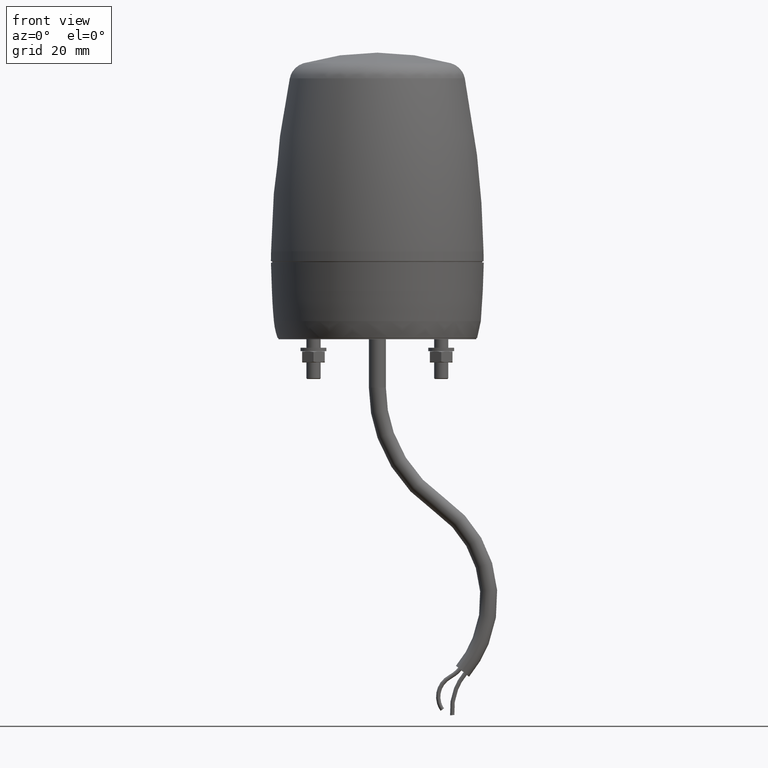
[diagram: clean part render]
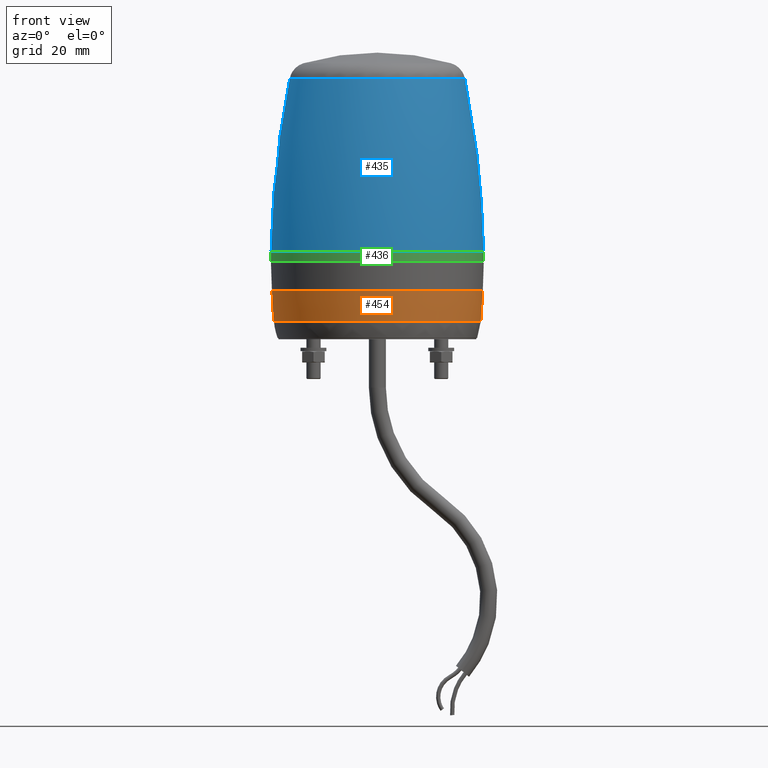
[diagram: same view with three faces highlighted in distinct colors, each labeled with its STEP entity id]
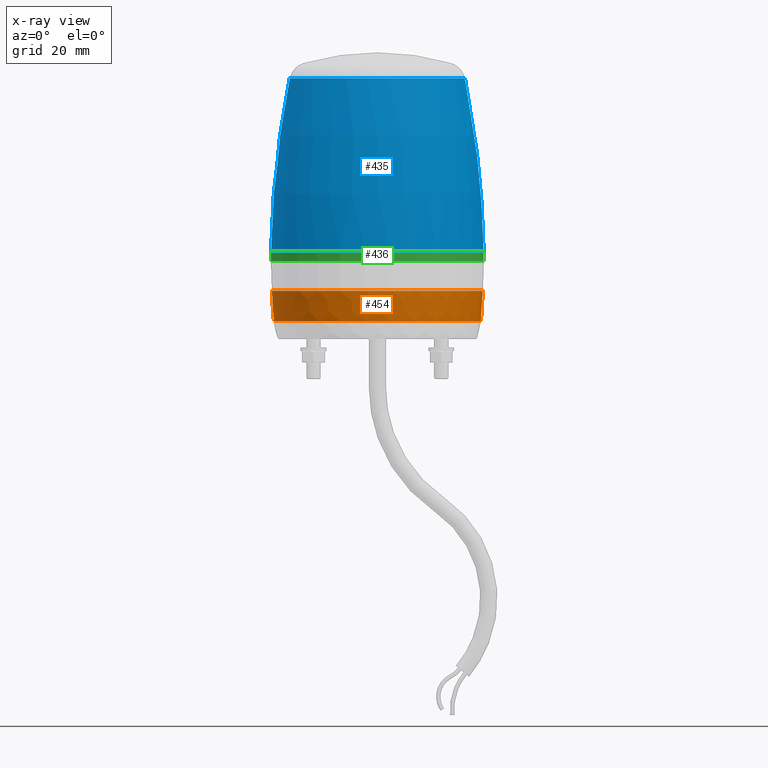
[diagram: x-ray of the same camera — body ghosted, the three highlighted faces saturated]
A machine part, front view with three faces highlighted in distinct colors.
The next image is the same camera in x-ray (body ghosted, the three faces saturated) — at least one of them is partly hidden behind the body in this view.
Their STEP definitions:

[orange] entity #454 — the highlighted face is a freeform B-spline surface patch.
#28=(
BOUNDED_SURFACE()
B_SPLINE_SURFACE(3,3,((#4504,#4505,#4506,#4507,#4508,#4509,#4510),(#4511,
#4512,#4513,#4514,#4515,#4516,#4517),(#4518,#4519,#4520,#4521,#4522,#4523,
#4524),(#4525,#4526,#4527,#4528,#4529,#4530,#4531)),.UNSPECIFIED.,.F.,.T.,
 .F.)
B_SPLINE_SURFACE_WITH_KNOTS((4,4),(1,3,3,3,1),(0.,1.),(-0.5,0.,0.5,1.,1.5),
 .UNSPECIFIED.)
GEOMETRIC_REPRESENTATION_ITEM()
RATIONAL_B_SPLINE_SURFACE(((1.,0.333333333333333,0.333333333333333,1.,0.333333333333333,
0.333333333333333,1.),(0.999710213128854,0.333236737709618,0.333236737709618,
0.999710213128854,0.333236737709618,0.333236737709618,0.999710213128854),
(0.999710213128854,0.333236737709618,0.333236737709618,0.999710213128854,
0.333236737709618,0.333236737709618,0.999710213128854),(1.,0.333333333333333,
0.333333333333333,1.,0.333333333333333,0.333333333333333,1.)))
REPRESENTATION_ITEM('')
SURFACE()
);
#454=ADVANCED_FACE('',(#1071,#1072),#28,.T.);
#1071=FACE_BOUND('',#1264,.T.);
#1072=FACE_BOUND('',#1265,.T.);
#1264=EDGE_LOOP('',(#1696));
#1265=EDGE_LOOP('',(#1697));
#1696=ORIENTED_EDGE('',*,*,#2529,.T.);
#1697=ORIENTED_EDGE('',*,*,#2530,.F.);
#2247=VERTEX_POINT('',#4473);
#2248=VERTEX_POINT('',#4503);
#2529=EDGE_CURVE('',#2247,#2247,#2764,.T.);
#2530=EDGE_CURVE('',#2248,#2248,#2765,.T.);
#2764=CIRCLE('',#2961,36.4645929040285);
#2765=CIRCLE('',#2962,37.1531243347865);
#2961=AXIS2_PLACEMENT_3D('',#4472,#3478,#3479);
#2962=AXIS2_PLACEMENT_3D('',#4502,#3480,#3481);
#3478=DIRECTION('',(0.,0.,1.));
#3479=DIRECTION('',(1.,0.,0.));
#3480=DIRECTION('',(0.,0.,1.));
#3481=DIRECTION('',(1.,0.,0.));
#4472=CARTESIAN_POINT('',(0.0196824600000306,-0.0196824600000021,-0.658859178168889));
#4473=CARTESIAN_POINT('',(36.4842753640286,-0.0196824600000021,-0.658859178168889));
#4502=CARTESIAN_POINT('',(0.0196824600000306,-0.0196824600000021,10.0190726277477));
#4503=CARTESIAN_POINT('',(37.1728067947865,-0.0196824600000021,10.0190726277477));
#4504=CARTESIAN_POINT('',(37.1728067947865,-0.0196824600000021,10.0190726277478));
#4505=CARTESIAN_POINT('',(37.1728067947865,74.286566209573,10.0190726277478));
#4506=CARTESIAN_POINT('',(-37.1334418747865,74.286566209573,10.0190726277478));
#4507=CARTESIAN_POINT('',(-37.1334418747865,-0.0196824600000021,10.0190726277478));
#4508=CARTESIAN_POINT('',(-37.1334418747865,-74.325931129573,10.0190726277478));
#4509=CARTESIAN_POINT('',(37.1728067947865,-74.325931129573,10.0190726277478));
#4510=CARTESIAN_POINT('',(37.1728067947865,-0.0196824600000021,10.0190726277478));
#4511=CARTESIAN_POINT('',(37.0482945891943,-0.0196824600000021,6.45350957159507));
#4512=CARTESIAN_POINT('',(37.0482945891943,74.0375417983886,6.45350957159507));
#4513=CARTESIAN_POINT('',(-37.0089296691943,74.0375417983886,6.45350957159507));
#4514=CARTESIAN_POINT('',(-37.0089296691943,-0.0196824600000021,6.45350957159507));
#4515=CARTESIAN_POINT('',(-37.0089296691943,-74.0769067183886,6.45350957159507));
#4516=CARTESIAN_POINT('',(37.0482945891943,-74.0769067183886,6.45350957159507));
#4517=CARTESIAN_POINT('',(37.0482945891943,-0.0196824600000021,6.45350957159507));
#4518=CARTESIAN_POINT('',(36.818717583873,-0.0196824600000021,2.89316722915524));
#4519=CARTESIAN_POINT('',(36.818717583873,73.5783877877459,2.89316722915524));
#4520=CARTESIAN_POINT('',(-36.7793526638729,73.5783877877459,2.89316722915524));
#4521=CARTESIAN_POINT('',(-36.7793526638729,-0.0196824600000021,2.89316722915524));
#4522=CARTESIAN_POINT('',(-36.7793526638729,-73.6177527077459,2.89316722915524));
#4523=CARTESIAN_POINT('',(36.818717583873,-73.6177527077459,2.89316722915524));
#4524=CARTESIAN_POINT('',(36.818717583873,-0.0196824600000021,2.89316722915524));
#4525=CARTESIAN_POINT('',(36.4842753640286,-0.0196824600000021,-0.658859178168877));
#4526=CARTESIAN_POINT('',(36.4842753640286,72.9095033480571,-0.658859178168877));
#4527=CARTESIAN_POINT('',(-36.4449104440285,72.9095033480571,-0.658859178168877));
#4528=CARTESIAN_POINT('',(-36.4449104440285,-0.0196824600000021,-0.658859178168877));
#4529=CARTESIAN_POINT('',(-36.4449104440285,-72.9488682680571,-0.658859178168877));
#4530=CARTESIAN_POINT('',(36.4842753640286,-72.9488682680571,-0.658859178168877));
#4531=CARTESIAN_POINT('',(36.4842753640286,-0.0196824600000021,-0.658859178168877));

[blue] entity #435 — the highlighted face is a freeform B-spline surface patch.
#26=(
BOUNDED_SURFACE()
B_SPLINE_SURFACE(3,3,((#4298,#4299,#4300,#4301,#4302,#4303,#4304),(#4305,
#4306,#4307,#4308,#4309,#4310,#4311),(#4312,#4313,#4314,#4315,#4316,#4317,
#4318),(#4319,#4320,#4321,#4322,#4323,#4324,#4325)),.UNSPECIFIED.,.F.,.T.,
 .F.)
B_SPLINE_SURFACE_WITH_KNOTS((4,4),(1,3,3,3,1),(0.,1.),(-0.5,0.,0.5,1.,1.5),
 .UNSPECIFIED.)
GEOMETRIC_REPRESENTATION_ITEM()
RATIONAL_B_SPLINE_SURFACE(((1.,0.333333333333333,0.333333333333333,1.,0.333333333333333,
0.333333333333333,1.),(0.997285282208532,0.332428427402844,0.332428427402844,
0.997285282208532,0.332428427402844,0.332428427402844,0.997285282208532),
(0.997285282208532,0.332428427402844,0.332428427402844,0.997285282208532,
0.332428427402844,0.332428427402844,0.997285282208532),(1.,0.333333333333333,
0.333333333333333,1.,0.333333333333333,0.333333333333333,1.)))
REPRESENTATION_ITEM('')
SURFACE()
);
#435=ADVANCED_FACE('',(#1053,#1054),#26,.T.);
#1053=FACE_BOUND('',#1236,.T.);
#1054=FACE_BOUND('',#1237,.T.);
#1236=EDGE_LOOP('',(#1622));
#1237=EDGE_LOOP('',(#1623));
#1622=ORIENTED_EDGE('',*,*,#2468,.T.);
#1623=ORIENTED_EDGE('',*,*,#2469,.T.);
#2190=VERTEX_POINT('',#4294);
#2191=VERTEX_POINT('',#4297);
#2468=EDGE_CURVE('',#2190,#2190,#2749,.T.);
#2469=EDGE_CURVE('',#2191,#2191,#2750,.T.);
#2749=CIRCLE('',#2929,30.8389550829777);
#2750=CIRCLE('',#2931,37.4301797402871);
#2929=AXIS2_PLACEMENT_3D('',#4293,#3368,#3369);
#2931=AXIS2_PLACEMENT_3D('',#4296,#3372,#3373);
#3368=DIRECTION('',(0.,0.,-1.));
#3369=DIRECTION('',(-1.,0.,0.));
#3372=DIRECTION('',(0.,0.,1.));
#3373=DIRECTION('',(1.,0.,0.));
#4293=CARTESIAN_POINT('',(3.66373598126302E-015,0.,84.8988556907093));
#4294=CARTESIAN_POINT('',(-30.8389550829777,0.,84.8988556907093));
#4296=CARTESIAN_POINT('',(3.66373598126302E-015,0.,23.9522920344817));
#4297=CARTESIAN_POINT('',(37.4301797402871,0.,23.9522920344817));
#4298=CARTESIAN_POINT('',(30.8389550829776,0.,84.8988556907093));
#4299=CARTESIAN_POINT('',(30.8389550829776,61.6779101659552,84.8988556907093));
#4300=CARTESIAN_POINT('',(-30.8389550829776,61.6779101659552,84.8988556907093));
#4301=CARTESIAN_POINT('',(-30.8389550829776,0.,84.8988556907093));
#4302=CARTESIAN_POINT('',(-30.8389550829776,-61.6779101659552,84.8988556907093));
#4303=CARTESIAN_POINT('',(30.8389550829776,-61.6779101659552,84.8988556907093));
#4304=CARTESIAN_POINT('',(30.8389550829776,0.,84.8988556907093));
#4305=CARTESIAN_POINT('',(34.8695312917553,0.,64.8095971563194));
#4306=CARTESIAN_POINT('',(34.8695312917553,69.7390625835106,64.8095971563194));
#4307=CARTESIAN_POINT('',(-34.8695312917553,69.7390625835106,64.8095971563194));
#4308=CARTESIAN_POINT('',(-34.8695312917553,0.,64.8095971563194));
#4309=CARTESIAN_POINT('',(-34.8695312917553,-69.7390625835106,64.8095971563194));
#4310=CARTESIAN_POINT('',(34.8695312917553,-69.7390625835106,64.8095971563194));
#4311=CARTESIAN_POINT('',(34.8695312917553,0.,64.8095971563194));
#4312=CARTESIAN_POINT('',(37.0725868516492,0.,44.4387749039816));
#4313=CARTESIAN_POINT('',(37.0725868516492,74.1451737032985,44.4387749039816));
#4314=CARTESIAN_POINT('',(-37.0725868516492,74.1451737032985,44.4387749039816));
#4315=CARTESIAN_POINT('',(-37.0725868516492,0.,44.4387749039816));
#4316=CARTESIAN_POINT('',(-37.0725868516492,-74.1451737032985,44.4387749039816));
#4317=CARTESIAN_POINT('',(37.0725868516492,-74.1451737032985,44.4387749039816));
#4318=CARTESIAN_POINT('',(37.0725868516492,0.,44.4387749039816));
#4319=CARTESIAN_POINT('',(37.4301797402872,0.,23.9522920344817));
#4320=CARTESIAN_POINT('',(37.4301797402872,74.8603594805744,23.9522920344817));
#4321=CARTESIAN_POINT('',(-37.4301797402872,74.8603594805745,23.9522920344817));
#4322=CARTESIAN_POINT('',(-37.4301797402872,0.,23.9522920344817));
#4323=CARTESIAN_POINT('',(-37.4301797402872,-74.8603594805745,23.9522920344817));
#4324=CARTESIAN_POINT('',(37.4301797402872,-74.8603594805744,23.9522920344817));
#4325=CARTESIAN_POINT('',(37.4301797402872,0.,23.9522920344817));

[green] entity #436 — the highlighted conical surface has half-angle 1 deg.
#174=CONICAL_SURFACE('',#2933,37.5,1.00000000000006);
#436=ADVANCED_FACE('',(#1055,#1056),#174,.T.);
#1055=FACE_BOUND('',#1238,.T.);
#1056=FACE_BOUND('',#1239,.T.);
#1238=EDGE_LOOP('',(#1624));
#1239=EDGE_LOOP('',(#1625));
#1624=ORIENTED_EDGE('',*,*,#2470,.T.);
#1625=ORIENTED_EDGE('',*,*,#2469,.F.);
#2191=VERTEX_POINT('',#4297);
#2192=VERTEX_POINT('',#4327);
#2469=EDGE_CURVE('',#2191,#2191,#2750,.T.);
#2470=EDGE_CURVE('',#2192,#2192,#2751,.T.);
#2750=CIRCLE('',#2931,37.4301797402871);
#2751=CIRCLE('',#2932,37.4912724675359);
#2931=AXIS2_PLACEMENT_3D('',#4296,#3372,#3373);
#2932=AXIS2_PLACEMENT_3D('',#4326,#3374,#3375);
#2933=AXIS2_PLACEMENT_3D('',#4328,#3376,#3377);
#3372=DIRECTION('',(0.,0.,1.));
#3373=DIRECTION('',(1.,0.,0.));
#3374=DIRECTION('',(0.,0.,1.));
#3375=DIRECTION('',(-1.,0.,0.));
#3376=DIRECTION('',(0.,0.,-1.));
#3377=DIRECTION('',(-1.,0.,3.78794597712005E-016));
#4296=CARTESIAN_POINT('',(3.66373598126302E-015,0.,23.9522920344817));
#4297=CARTESIAN_POINT('',(37.4301797402871,0.,23.9522920344817));
#4326=CARTESIAN_POINT('',(3.66373598126302E-015,0.,20.4522920344817));
#4327=CARTESIAN_POINT('',(-37.4912724675359,0.,20.4522920344817));
#4328=CARTESIAN_POINT('',(3.66373598126302E-015,0.,19.9522920344817));